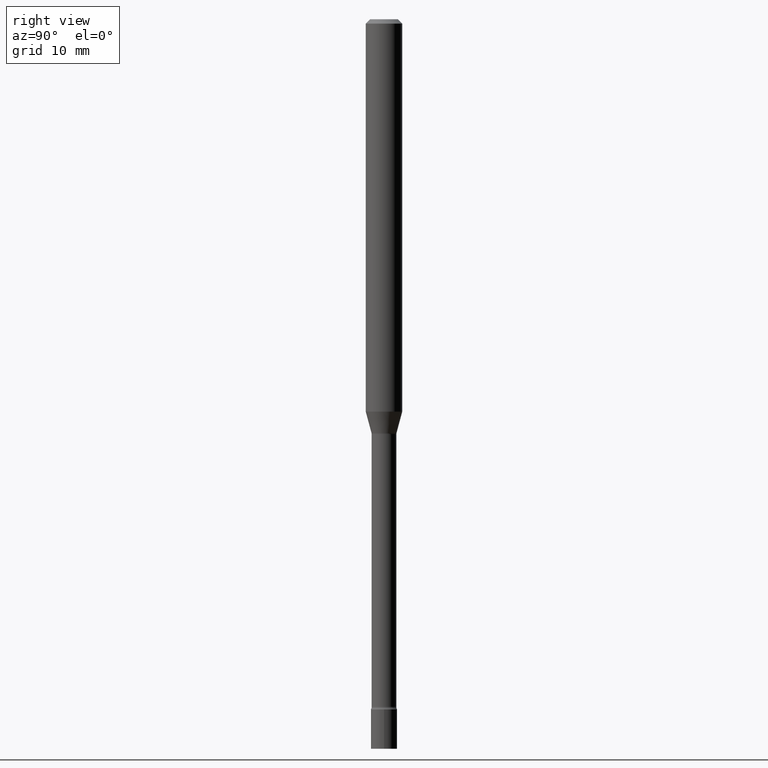
[diagram: clean part render]
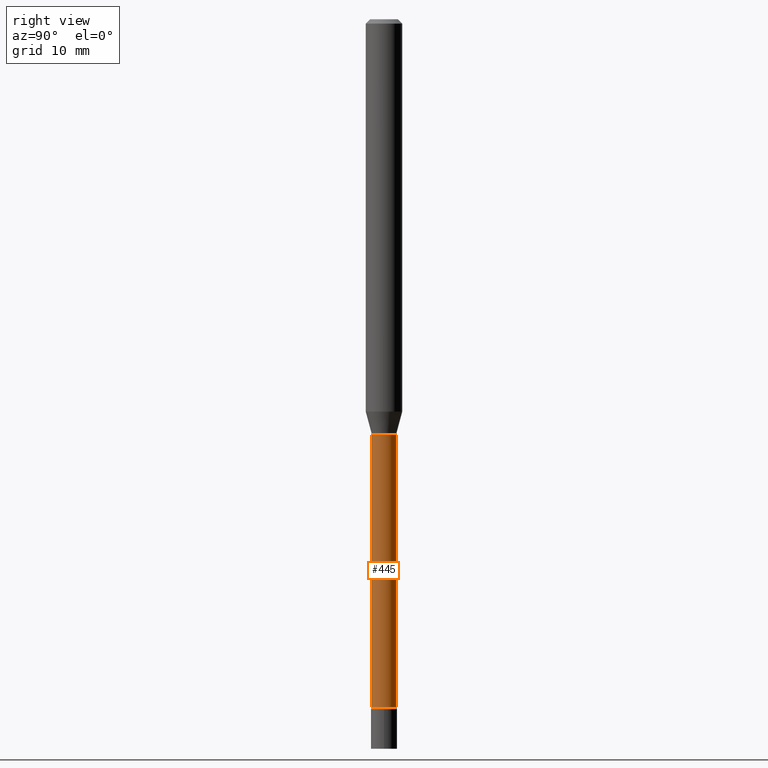
[diagram: same view with one face highlighted and labeled with its STEP entity id]
A machine part, right view. The second image highlights one B-rep face of the part: STEP entity #445.
In plain terms, the highlighted cylindrical surface (edge-blend (fillet) strip) has radius 1.0744 mm, axis along (-0, 0, 1).
Its self-contained STEP definition (entity closure, byte-faithful):
#7 = CARTESIAN_POINT ( 'NONE',  ( 3.101519041593418202E-16, 0.04229999999999190657, -2.356414547187247965 ) ) ;
#9 = CARTESIAN_POINT ( 'NONE',  ( -2.953793212660724034E-16, -0.04230000000000836563, -2.356414547187247077 ) ) ;
#17 = ORIENTED_EDGE ( 'NONE', *, *, #19, .T. ) ;
#18 = DIRECTION ( 'NONE',  ( -2.445535940486029483E-29, 3.491385198703219756E-15, 1.000000000000000000 ) ) ;
#19 = EDGE_CURVE ( 'NONE', #298, #228, #145, .T. ) ;
#48 = VECTOR ( 'NONE', #94, 39.37007874015748143 ) ;
#56 = ORIENTED_EDGE ( 'NONE', *, *, #123, .T. ) ;
#94 = DIRECTION ( 'NONE',  ( -2.445535940486029483E-29, 3.491385198703219756E-15, 1.000000000000000000 ) ) ;
#115 = DIRECTION ( 'NONE',  ( -2.445535940486029483E-29, 3.491385198703219756E-15, 1.000000000000000000 ) ) ;
#123 = EDGE_CURVE ( 'NONE', #287, #298, #234, .T. ) ;
#145 = LINE ( 'NONE', #440, #289 ) ;
#158 = DIRECTION ( 'NONE',  ( -2.445535940486029483E-29, 3.491385198703219756E-15, 1.000000000000000000 ) ) ;
#180 = VERTEX_POINT ( 'NONE', #276 ) ;
#186 = AXIS2_PLACEMENT_3D ( 'NONE', #280, #275, #329 ) ;
#212 = EDGE_LOOP ( 'NONE', ( #56, #17, #503, #343 ) ) ;
#217 = EDGE_CURVE ( 'NONE', #180, #228, #471, .T. ) ;
#224 = DIRECTION ( 'NONE',  ( -6.982962677686266711E-15, -1.000000000000000000, 3.491385198703219756E-15 ) ) ;
#228 = VERTEX_POINT ( 'NONE', #236 ) ;
#234 = CIRCLE ( 'NONE', #262, 0.04230000000000013610 ) ;
#236 = CARTESIAN_POINT ( 'NONE',  ( 3.005595772265802916E-16, 0.04229999999999504295, -1.421974787463811563 ) ) ;
#262 = AXIS2_PLACEMENT_3D ( 'NONE', #473, #115, #511 ) ;
#264 = FACE_OUTER_BOUND ( 'NONE', #212, .T. ) ;
#275 = DIRECTION ( 'NONE',  ( -2.445535940486029483E-29, 3.491385198703219756E-15, 1.000000000000000000 ) ) ;
#276 = CARTESIAN_POINT ( 'NONE',  ( -2.953793212660943436E-16, -0.04230000000000497945, -1.421974787463810896 ) ) ;
#280 = CARTESIAN_POINT ( 'NONE',  ( 3.477490449207734053E-29, -4.964661725880308206E-15, -1.421974787463811118 ) ) ;
#287 = VERTEX_POINT ( 'NONE', #9 ) ;
#289 = VECTOR ( 'NONE', #158, 39.37007874015748143 ) ;
#298 = VERTEX_POINT ( 'NONE', #7 ) ;
#299 = CYLINDRICAL_SURFACE ( 'NONE', #489, 0.04230000000000006671 ) ;
#329 = DIRECTION ( 'NONE',  ( -6.982962677686265133E-15, -1.000000000000000000, 6.458269488567996591E-15 ) ) ;
#331 = CARTESIAN_POINT ( 'NONE',  ( -2.953793212661295465E-16, -0.04230000000000006671, 1.476855939051464272E-16 ) ) ;
#332 = LINE ( 'NONE', #331, #48 ) ;
#339 = EDGE_CURVE ( 'NONE', #287, #180, #332, .T. ) ;
#343 = ORIENTED_EDGE ( 'NONE', *, *, #339, .F. ) ;
#431 = CARTESIAN_POINT ( 'NONE',  ( 0.000000000000000000, 0.000000000000000000, 0.000000000000000000 ) ) ;
#440 = CARTESIAN_POINT ( 'NONE',  ( 3.005595772265228033E-16, 0.04230000000000006671, -1.476855939051464272E-16 ) ) ;
#445 = ADVANCED_FACE ( 'NONE', ( #264 ), #299, .T. ) ;
#471 = CIRCLE ( 'NONE', #186, 0.04230000000000001120 ) ;
#473 = CARTESIAN_POINT ( 'NONE',  ( 5.762696465830526274E-29, -8.227150872058505933E-15, -2.356414547187247521 ) ) ;
#489 = AXIS2_PLACEMENT_3D ( 'NONE', #431, #18, #224 ) ;
#503 = ORIENTED_EDGE ( 'NONE', *, *, #217, .F. ) ;
#511 = DIRECTION ( 'NONE',  ( -6.982962677686266711E-15, -1.000000000000000000, 6.458269488567977659E-15 ) ) ;